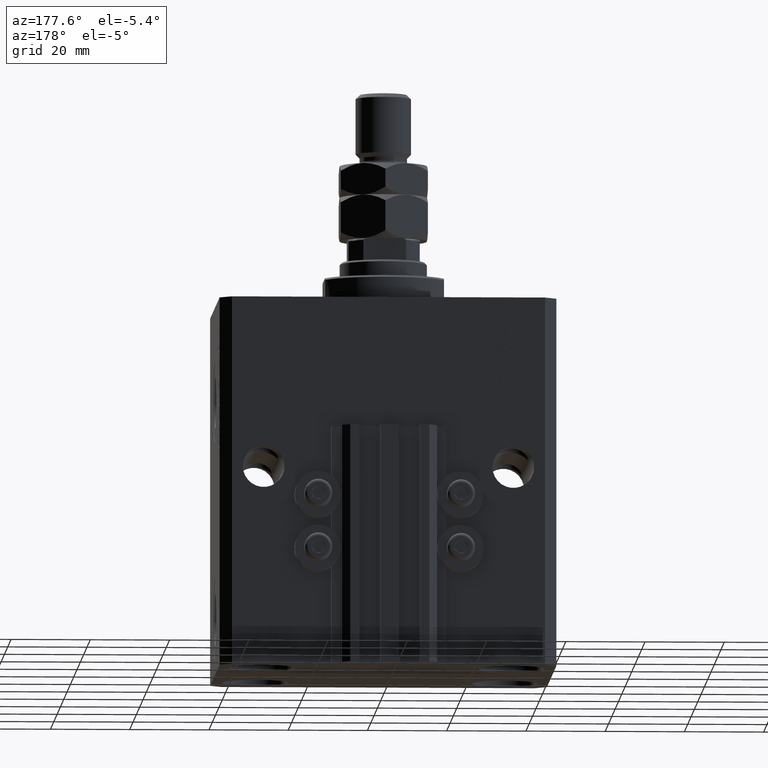
[diagram: clean part render]
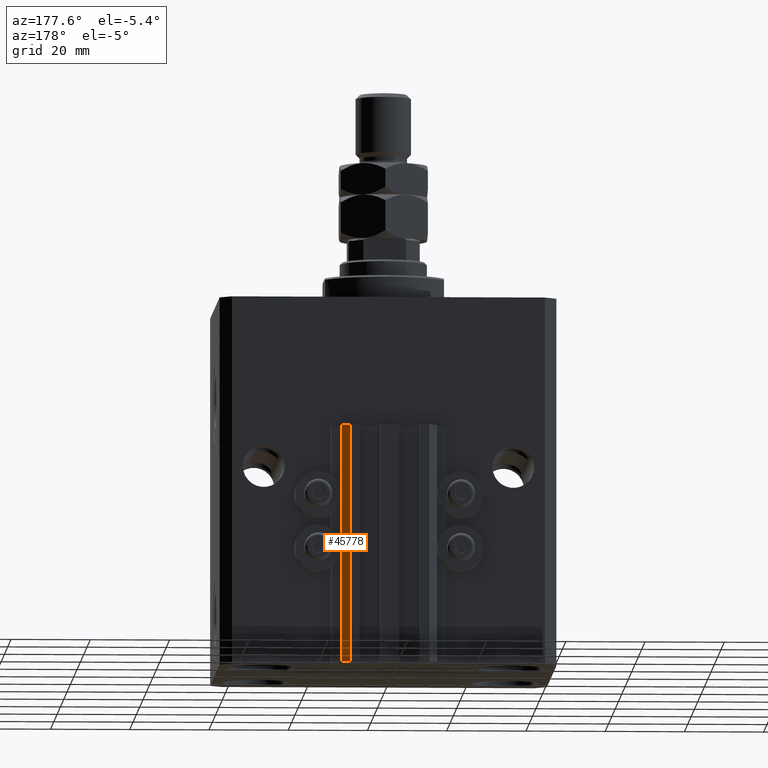
[diagram: same view with one face highlighted and labeled with its STEP entity id]
A machine part, auxiliary view. The second image highlights one B-rep face of the part: STEP entity #45778.
In plain terms, the highlighted planar face has unit normal (0.7071, 0.7071, 0).
Its self-contained STEP definition (entity closure, byte-faithful):
#105 = VECTOR ( 'NONE', #43818, 1000.000000000000000 ) ;
#679 = VERTEX_POINT ( 'NONE', #17383 ) ;
#1259 = VERTEX_POINT ( 'NONE', #13087 ) ;
#1882 = LINE ( 'NONE', #36284, #46722 ) ;
#1967 = VERTEX_POINT ( 'NONE', #11741 ) ;
#3490 = CARTESIAN_POINT ( 'NONE',  ( 9.999999999999998224, 39.50000000000002132, -33.00000000000000000 ) ) ;
#4299 = VERTEX_POINT ( 'NONE', #3490 ) ;
#4967 = ORIENTED_EDGE ( 'NONE', *, *, #49176, .F. ) ;
#8257 = EDGE_CURVE ( 'NONE', #1259, #679, #1882, .T. ) ;
#10596 = LINE ( 'NONE', #48811, #33550 ) ;
#11131 = AXIS2_PLACEMENT_3D ( 'NONE', #21358, #32134, #47742 ) ;
#11741 = CARTESIAN_POINT ( 'NONE',  ( 9.999999999999998224, 39.50000000000002132, -93.00000000000000000 ) ) ;
#13087 = CARTESIAN_POINT ( 'NONE',  ( 12.00000000000000000, 37.50000000000002132, -93.00000000000000000 ) ) ;
#16517 = LINE ( 'NONE', #43639, #26181 ) ;
#16598 = PLANE ( 'NONE',  #11131 ) ;
#17383 = CARTESIAN_POINT ( 'NONE',  ( 12.00000000000000000, 37.50000000000002132, -33.00000000000000000 ) ) ;
#21102 = FACE_OUTER_BOUND ( 'NONE', #46212, .T. ) ;
#21358 = CARTESIAN_POINT ( 'NONE',  ( 12.00000000000000000, 37.50000000000002132, -93.00000000000000000 ) ) ;
#21922 = DIRECTION ( 'NONE',  ( -0.7071067811865474617, 0.7071067811865474617, 0.000000000000000000 ) ) ;
#25871 = EDGE_CURVE ( 'NONE', #1967, #4299, #32241, .T. ) ;
#26181 = VECTOR ( 'NONE', #31820, 1000.000000000000114 ) ;
#29234 = CARTESIAN_POINT ( 'NONE',  ( 9.999999999999998224, 39.50000000000002132, -93.00000000000000000 ) ) ;
#31820 = DIRECTION ( 'NONE',  ( -0.7071067811865474617, 0.7071067811865474617, 0.000000000000000000 ) ) ;
#32134 = DIRECTION ( 'NONE',  ( 0.7071067811865475727, 0.7071067811865475727, -0.000000000000000000 ) ) ;
#32241 = LINE ( 'NONE', #29234, #105 ) ;
#33550 = VECTOR ( 'NONE', #21922, 1000.000000000000114 ) ;
#34441 = ORIENTED_EDGE ( 'NONE', *, *, #45597, .T. ) ;
#36284 = CARTESIAN_POINT ( 'NONE',  ( 12.00000000000000000, 37.50000000000002132, -93.00000000000000000 ) ) ;
#38102 = ORIENTED_EDGE ( 'NONE', *, *, #25871, .T. ) ;
#43639 = CARTESIAN_POINT ( 'NONE',  ( 12.00000000000000000, 37.50000000000002132, -33.00000000000000000 ) ) ;
#43818 = DIRECTION ( 'NONE',  ( 0.000000000000000000, 0.000000000000000000, 1.000000000000000000 ) ) ;
#44336 = DIRECTION ( 'NONE',  ( 0.000000000000000000, 0.000000000000000000, 1.000000000000000000 ) ) ;
#45597 = EDGE_CURVE ( 'NONE', #1259, #1967, #10596, .T. ) ;
#45598 = ORIENTED_EDGE ( 'NONE', *, *, #8257, .F. ) ;
#45778 = ADVANCED_FACE ( 'NONE', ( #21102 ), #16598, .T. ) ;
#46212 = EDGE_LOOP ( 'NONE', ( #4967, #45598, #34441, #38102 ) ) ;
#46722 = VECTOR ( 'NONE', #44336, 1000.000000000000000 ) ;
#47742 = DIRECTION ( 'NONE',  ( -0.7071067811865474617, 0.7071067811865474617, 0.000000000000000000 ) ) ;
#48811 = CARTESIAN_POINT ( 'NONE',  ( 12.00000000000000000, 37.50000000000002132, -93.00000000000000000 ) ) ;
#49176 = EDGE_CURVE ( 'NONE', #679, #4299, #16517, .T. ) ;